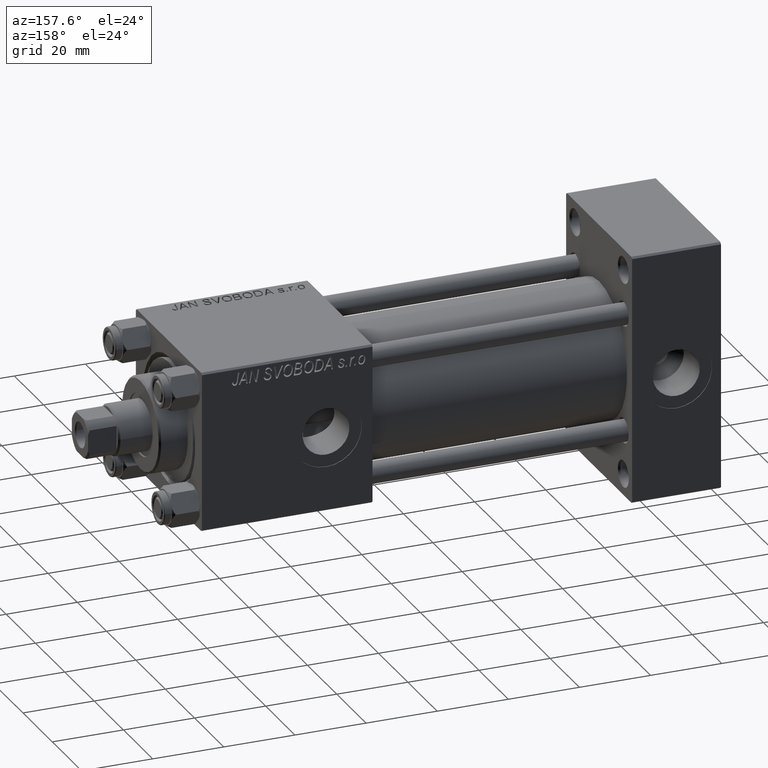
[diagram: clean part render]
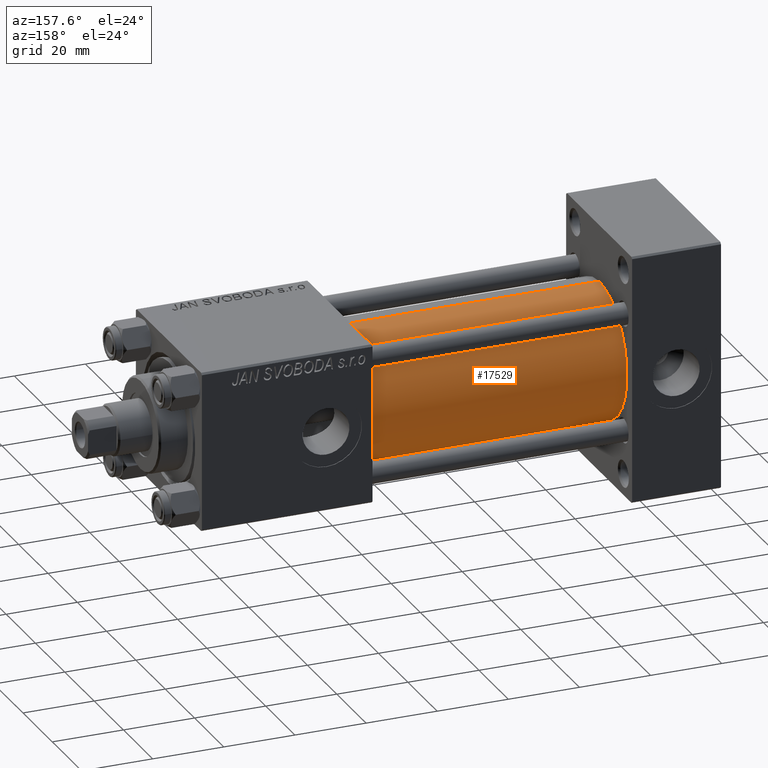
[diagram: same view with one face highlighted and labeled with its STEP entity id]
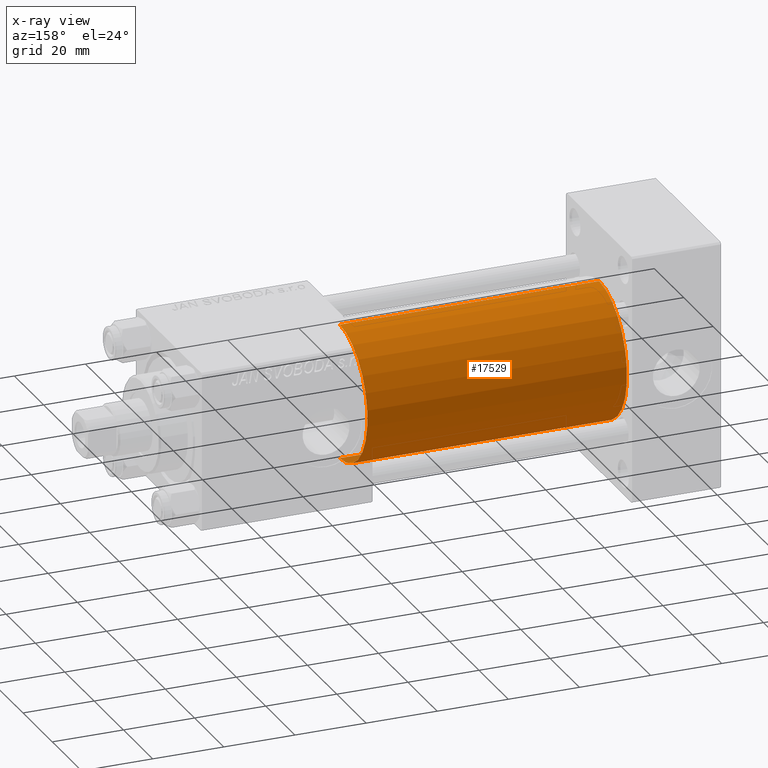
[diagram: x-ray of the same camera — body ghosted, the highlighted face saturated]
A machine part, auxiliary view. The second image highlights one B-rep face of the part: STEP entity #17529.
The next image is the same camera in x-ray: the body ghosted, the highlighted face saturated — about 0% of this face is hidden behind the body in this view.
In plain terms, the highlighted cylindrical surface (partial cylindrical patch) has radius 19 mm, axis along (-1, -0, -0).
Its self-contained STEP definition (entity closure, byte-faithful):
#783 = AXIS2_PLACEMENT_3D ( 'NONE', #27107, #44185, #9585 ) ;
#1085 = CYLINDRICAL_SURFACE ( 'NONE', #783, 19.00000000000000000 ) ;
#1499 = EDGE_CURVE ( 'NONE', #13801, #16210, #40691, .T. ) ;
#1592 = VERTEX_POINT ( 'NONE', #41882 ) ;
#3252 = CARTESIAN_POINT ( 'NONE',  ( 24.99999999999999289, -2.602085213965210642E-15, 0.000000000000000000 ) ) ;
#5913 = AXIS2_PLACEMENT_3D ( 'NONE', #16150, #27985, #35557 ) ;
#8264 = EDGE_CURVE ( 'NONE', #13352, #16210, #26247, .T. ) ;
#8561 = CARTESIAN_POINT ( 'NONE',  ( 24.99999999999999289, -2.602085213965210642E-15, 19.00000000000000000 ) ) ;
#9225 = VECTOR ( 'NONE', #32743, 1000.000000000000000 ) ;
#9585 = DIRECTION ( 'NONE',  ( 0.000000000000000000, 0.000000000000000000, 1.000000000000000000 ) ) ;
#11811 = CARTESIAN_POINT ( 'NONE',  ( 24.99999999999999289, -2.752562955852396712E-16, -19.00000000000000000 ) ) ;
#13208 = CARTESIAN_POINT ( 'NONE',  ( 98.00000000000000000, -2.602085213965210642E-15, 19.00000000000000000 ) ) ;
#13352 = VERTEX_POINT ( 'NONE', #13208 ) ;
#13801 = VERTEX_POINT ( 'NONE', #11811 ) ;
#13960 = CIRCLE ( 'NONE', #5913, 19.00000000000000000 ) ;
#16150 = CARTESIAN_POINT ( 'NONE',  ( 98.00000000000000000, -2.602085213965210642E-15, 0.000000000000000000 ) ) ;
#16210 = VERTEX_POINT ( 'NONE', #8561 ) ;
#17529 = ADVANCED_FACE ( 'NONE', ( #38714 ), #1085, .T. ) ;
#18580 = EDGE_LOOP ( 'NONE', ( #22289, #33216, #31438, #48093 ) ) ;
#18663 = DIRECTION ( 'NONE',  ( 1.000000000000000000, -0.000000000000000000, 0.000000000000000000 ) ) ;
#22289 = ORIENTED_EDGE ( 'NONE', *, *, #43240, .F. ) ;
#24008 = VECTOR ( 'NONE', #30287, 1000.000000000000000 ) ;
#26247 = LINE ( 'NONE', #34066, #24008 ) ;
#27107 = CARTESIAN_POINT ( 'NONE',  ( 98.00000000000000000, -2.602085213965210642E-15, 0.000000000000000000 ) ) ;
#27985 = DIRECTION ( 'NONE',  ( 1.000000000000000000, 0.000000000000000000, 0.000000000000000000 ) ) ;
#29013 = DIRECTION ( 'NONE',  ( 0.000000000000000000, 0.000000000000000000, 1.000000000000000000 ) ) ;
#29200 = LINE ( 'NONE', #36516, #9225 ) ;
#30287 = DIRECTION ( 'NONE',  ( -1.000000000000000000, -0.000000000000000000, -0.000000000000000000 ) ) ;
#31438 = ORIENTED_EDGE ( 'NONE', *, *, #1499, .T. ) ;
#32743 = DIRECTION ( 'NONE',  ( -1.000000000000000000, -0.000000000000000000, -0.000000000000000000 ) ) ;
#33216 = ORIENTED_EDGE ( 'NONE', *, *, #45799, .T. ) ;
#34066 = CARTESIAN_POINT ( 'NONE',  ( 98.00000000000000000, -2.602085213965210642E-15, 19.00000000000000000 ) ) ;
#35060 = AXIS2_PLACEMENT_3D ( 'NONE', #3252, #18663, #29013 ) ;
#35557 = DIRECTION ( 'NONE',  ( 0.000000000000000000, 0.000000000000000000, -1.000000000000000000 ) ) ;
#36516 = CARTESIAN_POINT ( 'NONE',  ( 98.00000000000000000, -2.752562955852396712E-16, -19.00000000000000000 ) ) ;
#38714 = FACE_OUTER_BOUND ( 'NONE', #18580, .T. ) ;
#40691 = CIRCLE ( 'NONE', #35060, 19.00000000000000000 ) ;
#41882 = CARTESIAN_POINT ( 'NONE',  ( 98.00000000000000000, -2.752562955852396712E-16, -19.00000000000000000 ) ) ;
#43240 = EDGE_CURVE ( 'NONE', #1592, #13352, #13960, .T. ) ;
#44185 = DIRECTION ( 'NONE',  ( -1.000000000000000000, -0.000000000000000000, -0.000000000000000000 ) ) ;
#45799 = EDGE_CURVE ( 'NONE', #1592, #13801, #29200, .T. ) ;
#48093 = ORIENTED_EDGE ( 'NONE', *, *, #8264, .F. ) ;